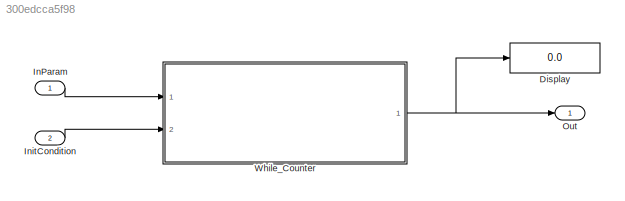
MODEL slx_300edcca5f98
KIND model
CONFIG AbsTol = auto
CONFIG EnableMultiTasking = off
CONFIG FixedStep = auto
CONFIG MaxStep = auto
CONFIG MinStep = auto
CONFIG RelTol = 1e-3
CONFIG SampleTimeConstraint = Unconstrained
CONFIG Solver = FixedStepDiscrete
CONFIG SolverName = FixedStepDiscrete
CONFIG StartTime = 0.0
CONFIG StopTime = 10.0
BLOCK [Display] Display
  Decimation = 1
  Ports = [1]
BLOCK [Inport] InParam
  IconDisplay = Port number
BLOCK [Inport] InitCondition
  IconDisplay = Port number
  Port = 2
BLOCK [Outport] Out
  IconDisplay = Port number
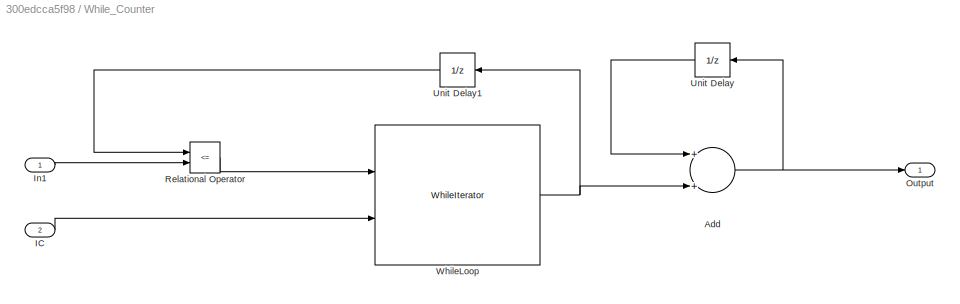
BLOCK [SubSystem] While_Counter
  Ports = [2, 1]
  RequestExecContextInheritance = off
  TreatAsAtomicUnit = on
  Variant = off
BLOCK [Sum] While_Counter/Add
  InputSameDT = off
  OutDataTypeStr = Inherit: Inherit via internal rule
  Ports = [2, 1]
  SaturateOnIntegerOverflow = off
BLOCK [Inport] While_Counter/IC
  IconDisplay = Port number
  Port = 2
BLOCK [Inport] While_Counter/In1
  IconDisplay = Port number
BLOCK [Outport] While_Counter/Output
  IconDisplay = Port number
BLOCK [RelationalOperator] While_Counter/Relational Operator
  InputSameDT = off
  Operator = <=
  OutDataTypeStr = boolean
  Ports = [2, 1]
  RndMeth = Simplest
BLOCK [UnitDelay] While_Counter/Unit Delay
  InputProcessing = Elements as channels (sample based)
  SampleTime = -1
BLOCK [UnitDelay] While_Counter/Unit Delay1
  InputProcessing = Elements as channels (sample based)
  SampleTime = -1
BLOCK [WhileIterator] While_Counter/WhileLoop
  Ports = [2, 1]
  ShowIterationPort = on
LINE InParam:1 -> While_Counter:1
LINE InitCondition:1 -> While_Counter:2
NET While_Counter/Add:1 -> While_Counter/Output:1, While_Counter/Unit Delay:1
LINE While_Counter/IC:1 -> While_Counter/WhileLoop:2
LINE While_Counter/In1:1 -> While_Counter/Relational Operator:2
LINE While_Counter/Relational Operator:1 -> While_Counter/WhileLoop:1
LINE While_Counter/Unit Delay1:1 -> While_Counter/Relational Operator:1
LINE While_Counter/Unit Delay:1 -> While_Counter/Add:1
NET While_Counter/WhileLoop:1 -> While_Counter/Add:2, While_Counter/Unit Delay1:1
NET While_Counter:1 -> Display:1, Out:1
note: NET lines group one-source signal fan-out (src -> all destinations, sorted); 1:1 wires keep LINE
